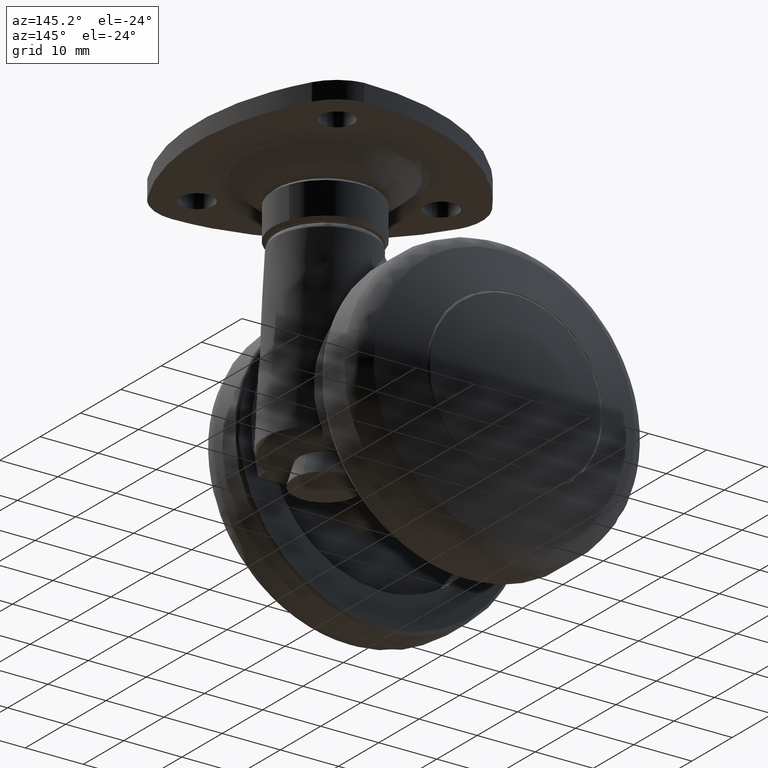
[diagram: clean part render]
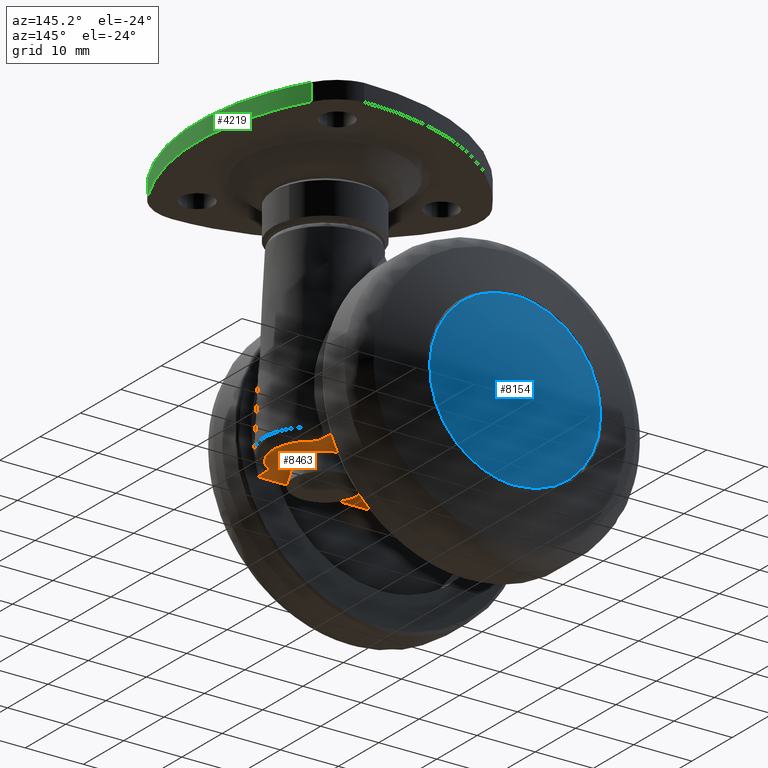
[diagram: same view with three faces highlighted in distinct colors, each labeled with its STEP entity id]
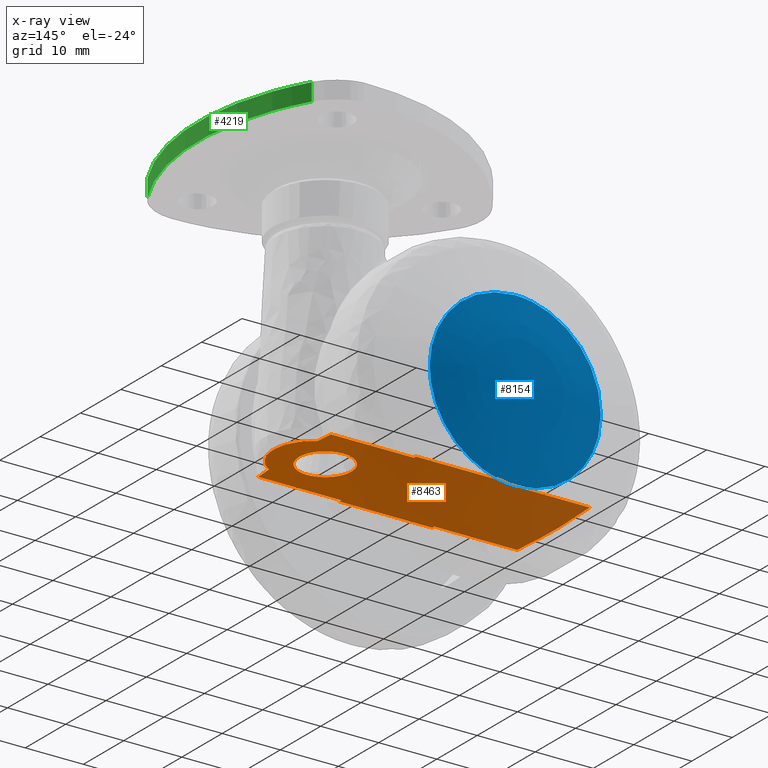
[diagram: x-ray of the same camera — body ghosted, the three highlighted faces saturated]
A machine part, auxiliary view with three faces highlighted in distinct colors.
The next image is the same camera in x-ray (body ghosted, the three faces saturated) — at least one of them is partly hidden behind the body in this view.
Their STEP definitions:

[orange] entity #8463 — the highlighted face is a freeform B-spline surface patch.
#5933=CARTESIAN_POINT('',(16.441430532839370,-4.465198780604559,-7.499999999999998));
#5934=VERTEX_POINT('',#5933);
#5940=CARTESIAN_POINT('',(12.500000000000000,-2.755364E-015,-7.500000000000000));
#5941=VERTEX_POINT('',#5940);
#5942=CARTESIAN_POINT('',(16.441430532839366,-4.465198780604559,-7.499999999999998));
#5943=CARTESIAN_POINT('',(12.499999999999998,-3.972149565837255,-7.499999999999999));
#5944=CARTESIAN_POINT('',(12.500000000000000,-2.755364E-015,-7.500000000000000));
#5952=(BOUNDED_CURVE()B_SPLINE_CURVE(2,(#5942,#5943,#5944),.UNSPECIFIED.,.F.,.U.)B_SPLINE_CURVE_WITH_KNOTS((3,3),(0.271473681878583,0.500000000000000),.UNSPECIFIED.)CURVE()GEOMETRIC_REPRESENTATION_ITEM()RATIONAL_B_SPLINE_CURVE((0.954005909785564,0.732264764407324,1.0))REPRESENTATION_ITEM(''));
#5953=EDGE_CURVE('',#5934,#5941,#5952,.T.);
#5955=CARTESIAN_POINT('',(17.039269409921101,4.499828653787210,-7.500000000000000));
#5956=VERTEX_POINT('',#5955);
#5957=CARTESIAN_POINT('',(12.500000000000000,-2.755364E-015,-7.500000000000000));
#5958=CARTESIAN_POINT('',(12.499999999999998,4.499999999999998,-7.500000000000000));
#5959=CARTESIAN_POINT('',(17.0,4.499999999999997,-7.500000000000000));
#5960=CARTESIAN_POINT('',(17.019635078871588,4.499999999999997,-7.500000000000000));
#5961=CARTESIAN_POINT('',(17.039269409921097,4.499828653787210,-7.500000000000000));
#5969=(BOUNDED_CURVE()B_SPLINE_CURVE(2,(#5957,#5958,#5959,#5960,#5961),.UNSPECIFIED.,.F.,.U.)B_SPLINE_CURVE_WITH_KNOTS((3,2,3),(0.500000000000000,0.750000000000000,0.751539894348956),.UNSPECIFIED.)CURVE()GEOMETRIC_REPRESENTATION_ITEM()RATIONAL_B_SPLINE_CURVE((1.0,0.707106781186547,1.0,0.998195901550007,0.996414028068079))REPRESENTATION_ITEM(''));
#5970=EDGE_CURVE('',#5941,#5956,#5969,.T.);
#6050=CARTESIAN_POINT('',(21.500000000000000,-2.755364E-015,-7.500000000000000));
#6051=VERTEX_POINT('',#6050);
#6052=CARTESIAN_POINT('',(17.039269409921097,4.499828653787210,-7.500000000000000));
#6053=CARTESIAN_POINT('',(21.499999999999996,4.460900447323635,-7.500000000000001));
#6054=CARTESIAN_POINT('',(21.500000000000000,-2.755364E-015,-7.500000000000000));
#6062=(BOUNDED_CURVE()B_SPLINE_CURVE(2,(#6052,#6053,#6054),.UNSPECIFIED.,.F.,.U.)B_SPLINE_CURVE_WITH_KNOTS((3,3),(0.751539894348955,1.0),.UNSPECIFIED.)CURVE()GEOMETRIC_REPRESENTATION_ITEM()RATIONAL_B_SPLINE_CURVE((0.996414028068080,0.708910879636540,1.0))REPRESENTATION_ITEM(''));
#6063=EDGE_CURVE('',#5956,#6051,#6062,.T.);
#6065=CARTESIAN_POINT('',(21.500000000000000,-2.755364E-015,-7.500000000000000));
#6066=CARTESIAN_POINT('',(21.500000000000000,-4.500000000000004,-7.500000000000000));
#6067=CARTESIAN_POINT('',(17.0,-4.500000000000003,-7.500000000000000));
#6068=CARTESIAN_POINT('',(16.719631135490040,-4.500000000000003,-7.500000000000001));
#6069=CARTESIAN_POINT('',(16.441430532839373,-4.465198780604559,-7.499999999999998));
#6077=(BOUNDED_CURVE()B_SPLINE_CURVE(2,(#6065,#6066,#6067,#6068,#6069),.UNSPECIFIED.,.F.,.U.)B_SPLINE_CURVE_WITH_KNOTS((3,2,3),(0.0,0.250000000000000,0.271473681878583),.UNSPECIFIED.)CURVE()GEOMETRIC_REPRESENTATION_ITEM()RATIONAL_B_SPLINE_CURVE((1.0,0.707106781186547,1.0,0.974842016779223,0.954005909785564))REPRESENTATION_ITEM(''));
#6078=EDGE_CURVE('',#6051,#5934,#6077,.T.);
#6772=CARTESIAN_POINT('',(22.508473345036649,6.008970139218520,-7.500000000000000));
#6773=VERTEX_POINT('',#6772);
#7784=CARTESIAN_POINT('',(22.508473345036649,-6.008970139218490,-7.500000000000000));
#7785=VERTEX_POINT('',#7784);
#7891=CARTESIAN_POINT('',(22.508473345036649,6.008970139218517,-7.500000000000000));
#7892=CARTESIAN_POINT('',(25.923797487043977,3.971716724947550,-7.500000000000000));
#7893=CARTESIAN_POINT('',(25.923797487043981,8.572244E-016,-7.500000000000000));
#7894=CARTESIAN_POINT('',(25.923797487043977,-3.971716724947548,-7.500000000000000));
#7895=CARTESIAN_POINT('',(22.508473345036649,-6.008970139218516,-7.500000000000000));
#7903=(BOUNDED_CURVE()B_SPLINE_CURVE(2,(#7891,#7892,#7893,#7894,#7895),.UNSPECIFIED.,.F.,.U.)B_SPLINE_CURVE_WITH_KNOTS((3,2,3),(0.0,0.500000000000000,1.0),.UNSPECIFIED.)CURVE()GEOMETRIC_REPRESENTATION_ITEM()RATIONAL_B_SPLINE_CURVE((1.0,0.869752913530884,1.0,0.869752913530884,1.0))REPRESENTATION_ITEM(''));
#7904=EDGE_CURVE('',#6773,#7785,#7903,.T.);
#7999=CARTESIAN_POINT('',(8.000000000000199,-9.0,-7.500000000000000));
#8000=VERTEX_POINT('',#7999);
#8013=CARTESIAN_POINT('',(8.000000000000231,-9.499999999999890,-7.500000000000000));
#8014=VERTEX_POINT('',#8013);
#8020=CARTESIAN_POINT('',(8.000000000000199,-9.0,-7.500000000000000));
#8021=CARTESIAN_POINT('',(8.000000000000231,-9.499999999999890,-7.500000000000000));
#8022=QUASI_UNIFORM_CURVE('',1,(#8020,#8021),.UNSPECIFIED.,.F.,.U.);
#8023=EDGE_CURVE('',#8000,#8014,#8022,.T.);
#8042=CARTESIAN_POINT('',(-7.999999999999789,-9.0,-7.500000000000000));
#8043=VERTEX_POINT('',#8042);
#8049=CARTESIAN_POINT('',(-7.999999999999789,-9.499999999999890,-7.500000000000000));
#8050=VERTEX_POINT('',#8049);
#8051=CARTESIAN_POINT('',(-7.999999999999789,-9.0,-7.500000000000000));
#8052=CARTESIAN_POINT('',(-7.999999999999789,-9.499999999999890,-7.500000000000000));
#8053=QUASI_UNIFORM_CURVE('',1,(#8051,#8052),.UNSPECIFIED.,.F.,.U.);
#8054=EDGE_CURVE('',#8043,#8050,#8053,.T.);
#8092=CARTESIAN_POINT('',(-7.999999999999789,-9.499999999999890,-7.500000000000000));
#8093=CARTESIAN_POINT('',(8.000000000000231,-9.499999999999890,-7.500000000000000));
#8094=QUASI_UNIFORM_CURVE('',1,(#8092,#8093),.UNSPECIFIED.,.F.,.U.);
#8095=EDGE_CURVE('',#8050,#8014,#8094,.T.);
#8196=CARTESIAN_POINT('',(8.000000000000231,9.500000000000108,-7.500000000000000));
#8197=VERTEX_POINT('',#8196);
#8203=CARTESIAN_POINT('',(-7.999999999999789,9.500000000000108,-7.500000000000000));
#8204=VERTEX_POINT('',#8203);
#8205=CARTESIAN_POINT('',(-7.999999999999789,9.500000000000108,-7.500000000000000));
#8206=CARTESIAN_POINT('',(8.000000000000231,9.500000000000108,-7.500000000000000));
#8207=QUASI_UNIFORM_CURVE('',1,(#8205,#8206),.UNSPECIFIED.,.F.,.U.);
#8208=EDGE_CURVE('',#8204,#8197,#8207,.T.);
#8230=CARTESIAN_POINT('',(-7.999999999999789,8.999999999999901,-7.500000000000000));
#8231=VERTEX_POINT('',#8230);
#8232=CARTESIAN_POINT('',(-7.999999999999789,9.500000000000108,-7.500000000000000));
#8233=CARTESIAN_POINT('',(-7.999999999999789,8.999999999999901,-7.500000000000000));
#8234=QUASI_UNIFORM_CURVE('',1,(#8232,#8233),.UNSPECIFIED.,.F.,.U.);
#8235=EDGE_CURVE('',#8204,#8231,#8234,.T.);
#8252=CARTESIAN_POINT('',(8.000000000000231,8.999999999999901,-7.500000000000000));
#8253=VERTEX_POINT('',#8252);
#8259=CARTESIAN_POINT('',(8.000000000000231,9.500000000000108,-7.500000000000000));
#8260=CARTESIAN_POINT('',(8.000000000000231,8.999999999999901,-7.500000000000000));
#8261=QUASI_UNIFORM_CURVE('',1,(#8259,#8260),.UNSPECIFIED.,.F.,.U.);
#8262=EDGE_CURVE('',#8197,#8253,#8261,.T.);
#8294=CARTESIAN_POINT('',(22.271056962330849,-9.0,-7.500000000000000));
#8295=VERTEX_POINT('',#8294);
#8309=CARTESIAN_POINT('',(22.271056962330849,-9.0,-7.500000000000000));
#8310=CARTESIAN_POINT('',(22.365907716105198,-8.005315201643915,-7.500000000000000));
#8311=CARTESIAN_POINT('',(22.445051108199991,-7.008305928470444,-7.500000000000000));
#8312=CARTESIAN_POINT('',(22.508473345036649,-6.008970139218490,-7.500000000000000));
#8313=B_SPLINE_CURVE_WITH_KNOTS('',3,(#8309,#8310,#8311,#8312),.UNSPECIFIED.,.F.,.U.,(4,4),(0.987302015286309,1.0),.UNSPECIFIED.);
#8314=EDGE_CURVE('',#8295,#7785,#8313,.T.);
#8327=CARTESIAN_POINT('',(22.271056962330849,-9.0,-7.500000000000000));
#8328=CARTESIAN_POINT('',(8.000000000000199,-9.0,-7.500000000000000));
#8329=QUASI_UNIFORM_CURVE('',1,(#8327,#8328),.UNSPECIFIED.,.F.,.U.);
#8330=EDGE_CURVE('',#8295,#8000,#8329,.T.);
#8334=CARTESIAN_POINT('',(-22.271056962330899,-9.0,-7.500000000000000));
#8335=VERTEX_POINT('',#8334);
#8351=CARTESIAN_POINT('',(-7.999999999999789,-9.0,-7.500000000000000));
#8352=CARTESIAN_POINT('',(-22.271056962330899,-9.0,-7.500000000000000));
#8353=QUASI_UNIFORM_CURVE('',1,(#8351,#8352),.UNSPECIFIED.,.F.,.U.);
#8354=EDGE_CURVE('',#8043,#8335,#8353,.T.);
#8365=CARTESIAN_POINT('',(-22.271056962330899,9.0,-7.500000000000000));
#8366=VERTEX_POINT('',#8365);
#8367=CARTESIAN_POINT('',(-22.271056962330899,9.0,-7.500000000000000));
#8368=CARTESIAN_POINT('',(-7.999999999999789,8.999999999999901,-7.500000000000000));
#8369=QUASI_UNIFORM_CURVE('',1,(#8367,#8368),.UNSPECIFIED.,.F.,.U.);
#8370=EDGE_CURVE('',#8366,#8231,#8369,.T.);
#8388=CARTESIAN_POINT('',(22.271056962330899,9.0,-7.500000000000000));
#8389=VERTEX_POINT('',#8388);
#8403=CARTESIAN_POINT('',(8.000000000000231,8.999999999999901,-7.500000000000000));
#8404=CARTESIAN_POINT('',(22.271056962330899,9.0,-7.500000000000000));
#8405=QUASI_UNIFORM_CURVE('',1,(#8403,#8404),.UNSPECIFIED.,.F.,.U.);
#8406=EDGE_CURVE('',#8253,#8389,#8405,.T.);
#8413=CARTESIAN_POINT('',(-25.127545805967731,-10.449049963174200,-7.500000000000000));
#8414=CARTESIAN_POINT('',(28.352499684814880,-10.449049963174200,-7.500000000000000));
#8415=CARTESIAN_POINT('',(-25.127545805967731,10.449050472794140,-7.500000000000000));
#8416=CARTESIAN_POINT('',(28.352499684814880,10.449050472794140,-7.500000000000000));
#8417=B_SPLINE_SURFACE_WITH_KNOTS('',1,1,((#8413,#8415),(#8414,#8416)),.UNSPECIFIED.,.F.,.F.,.U.,(2,2),(2,2),(0.0,53.480045490782601),(0.0,20.898100435968342),.UNSPECIFIED.);
#8418=CARTESIAN_POINT('',(22.508473345036649,6.008970139218520,-7.500000000000000));
#8419=CARTESIAN_POINT('',(22.445029146177308,7.008649669417468,-7.500000000000000));
#8420=CARTESIAN_POINT('',(22.365875098585281,8.005657028487292,-7.500000000000001));
#8421=CARTESIAN_POINT('',(22.271056962330899,9.0,-7.500000000000000));
#8422=B_SPLINE_CURVE_WITH_KNOTS('',3,(#8418,#8419,#8420,#8421),.UNSPECIFIED.,.F.,.U.,(4,4),(0.0,0.012657862134114),.UNSPECIFIED.);
#8423=EDGE_CURVE('',#6773,#8389,#8422,.T.);
#8424=ORIENTED_EDGE('',*,*,#8423,.F.);
#8425=ORIENTED_EDGE('',*,*,#7904,.T.);
#8426=ORIENTED_EDGE('',*,*,#8314,.F.);
#8427=ORIENTED_EDGE('',*,*,#8330,.T.);
#8428=ORIENTED_EDGE('',*,*,#8023,.T.);
#8429=ORIENTED_EDGE('',*,*,#8095,.F.);
#8430=ORIENTED_EDGE('',*,*,#8054,.F.);
#8431=ORIENTED_EDGE('',*,*,#8354,.T.);
#8432=CARTESIAN_POINT('',(-22.271056962330899,9.0,-7.500000000000000));
#8433=CARTESIAN_POINT('',(-22.326246436391131,8.421113523567511,-7.500000000000000));
#8434=CARTESIAN_POINT('',(-22.376107840399680,7.841567522138998,-7.500000000000000));
#8435=CARTESIAN_POINT('',(-22.607889066678592,4.822462405177966,-7.500000000000000));
#8436=CARTESIAN_POINT('',(-22.701146241926342,2.371928352875127,-7.499999999999999));
#8437=CARTESIAN_POINT('',(-22.697628886571451,-1.321623607242038,-7.499999999999997));
#8438=CARTESIAN_POINT('',(-22.672520384214948,-2.555770472345564,-7.500000000000002));
#8439=CARTESIAN_POINT('',(-22.610680921234270,-4.102223723649644,-7.499999999999999));
#8440=CARTESIAN_POINT('',(-22.596786909220739,-4.411712442788734,-7.500000000000001));
#8441=CARTESIAN_POINT('',(-22.566012359647061,-5.029699530149097,-7.499999999999998));
#8442=CARTESIAN_POINT('',(-22.515351681856671,-5.955708155191383,-7.500000000000001));
#8443=CARTESIAN_POINT('',(-22.451252646681070,-6.878813337347844,-7.500000000000000));
#8444=CARTESIAN_POINT('',(-22.362715623734921,-7.996148128712547,-7.500000000000000));
#8445=CARTESIAN_POINT('',(-22.318867952421201,-8.498502214515414,-7.500000000000000));
#8446=CARTESIAN_POINT('',(-22.271056962330899,-9.0,-7.500000000000000));
#8447=B_SPLINE_CURVE_WITH_KNOTS('',3,(#8432,#8433,#8434,#8435,#8436,#8437,#8438,#8439,#8440,#8441,#8442,#8443,#8444,#8445,#8446),.UNSPECIFIED.,.F.,.U.,(4,2,2,2,2,1,2,4),(0.461315755579124,0.468749999999992,0.499999999999991,0.515624999999991,0.519531249999991,0.523437499999991,0.531249999999991,0.537651572681553),.UNSPECIFIED.);
#8448=EDGE_CURVE('',#8366,#8335,#8447,.T.);
#8449=ORIENTED_EDGE('',*,*,#8448,.F.);
#8450=ORIENTED_EDGE('',*,*,#8370,.T.);
#8451=ORIENTED_EDGE('',*,*,#8235,.F.);
#8452=ORIENTED_EDGE('',*,*,#8208,.T.);
#8453=ORIENTED_EDGE('',*,*,#8262,.T.);
#8454=ORIENTED_EDGE('',*,*,#8406,.T.);
#8455=EDGE_LOOP('',(#8424,#8425,#8426,#8427,#8428,#8429,#8430,#8431,#8449,#8450,#8451,#8452,#8453,#8454));
#8456=FACE_OUTER_BOUND('',#8455,.T.);
#8457=ORIENTED_EDGE('',*,*,#5970,.F.);
#8458=ORIENTED_EDGE('',*,*,#5953,.F.);
#8459=ORIENTED_EDGE('',*,*,#6078,.F.);
#8460=ORIENTED_EDGE('',*,*,#6063,.F.);
#8461=EDGE_LOOP('',(#8457,#8458,#8459,#8460));
#8462=FACE_BOUND('',#8461,.T.);
#8463=ADVANCED_FACE('',(#8456,#8462),#8417,.F.);

[blue] entity #8154 — the highlighted face is a freeform B-spline surface patch.
#6272=CARTESIAN_POINT('',(5.284961764844386,22.599255052118369,-13.745990887027739));
#6273=VERTEX_POINT('',#6272);
#6287=CARTESIAN_POINT('',(0.0,22.599255056600999,14.726951002130320));
#6288=VERTEX_POINT('',#6287);
#6289=CARTESIAN_POINT('',(0.0,22.599255056600999,14.726951002130320));
#6290=CARTESIAN_POINT('',(14.726951002130319,22.599255056600999,14.726951002130319));
#6291=CARTESIAN_POINT('',(14.726951002130320,22.599255056600999,-2.621149E-016));
#6292=CARTESIAN_POINT('',(14.726951002130322,22.599255056600999,-10.115801345452606));
#6293=CARTESIAN_POINT('',(5.284961764844386,22.599255052118366,-13.745990887027736));
#6301=(BOUNDED_CURVE()B_SPLINE_CURVE(2,(#6289,#6290,#6291,#6292,#6293),.UNSPECIFIED.,.F.,.U.)B_SPLINE_CURVE_WITH_KNOTS((3,2,3),(0.500000000000000,0.750000000000000,0.939060941086260),.UNSPECIFIED.)CURVE()GEOMETRIC_REPRESENTATION_ITEM()RATIONAL_B_SPLINE_CURVE((1.0,0.707106781186548,1.0,0.778501329653379,0.892016635827458))REPRESENTATION_ITEM(''));
#6302=EDGE_CURVE('',#6288,#6273,#6301,.T.);
#6304=CARTESIAN_POINT('',(-14.264276769928721,22.599255052655622,-3.662443786968857));
#6305=VERTEX_POINT('',#6304);
#6306=CARTESIAN_POINT('',(-14.264276769928722,22.599255052655625,-3.662443786968857));
#6307=CARTESIAN_POINT('',(-14.726951002130322,22.599255056601002,-1.860446566745563));
#6308=CARTESIAN_POINT('',(-14.726951002130320,22.599255056600999,-2.621149E-016));
#6309=CARTESIAN_POINT('',(-14.726951002130319,22.599255056600999,14.726951002130319));
#6310=CARTESIAN_POINT('',(0.0,22.599255056600999,14.726951002130320));
#6318=(BOUNDED_CURVE()B_SPLINE_CURVE(2,(#6306,#6307,#6308,#6309,#6310),.UNSPECIFIED.,.F.,.U.)B_SPLINE_CURVE_WITH_KNOTS((3,2,3),(0.207556761751615,0.250000000000000,0.500000000000000),.UNSPECIFIED.)CURVE()GEOMETRIC_REPRESENTATION_ITEM()RATIONAL_B_SPLINE_CURVE((0.917433344546013,0.950274653330257,1.0,0.707106781186548,1.0))REPRESENTATION_ITEM(''));
#6319=EDGE_CURVE('',#6305,#6288,#6318,.T.);
#6364=CARTESIAN_POINT('',(0.0,22.599255056600999,-14.726951002130320));
#6365=VERTEX_POINT('',#6364);
#6366=CARTESIAN_POINT('',(0.0,22.599255056600999,-14.726951002130320));
#6367=CARTESIAN_POINT('',(-11.423394152205454,22.599255056601002,-14.726951002130324));
#6368=CARTESIAN_POINT('',(-14.264276769928726,22.599255052655622,-3.662443786968857));
#6376=(BOUNDED_CURVE()B_SPLINE_CURVE(2,(#6366,#6367,#6368),.UNSPECIFIED.,.F.,.U.)B_SPLINE_CURVE_WITH_KNOTS((3,3),(0.0,0.207556761751615),.UNSPECIFIED.)CURVE()GEOMETRIC_REPRESENTATION_ITEM()RATIONAL_B_SPLINE_CURVE((1.0,0.756832127856291,0.917433344546013))REPRESENTATION_ITEM(''));
#6377=EDGE_CURVE('',#6365,#6305,#6376,.T.);
#6379=CARTESIAN_POINT('',(5.284961764844386,22.599255052118362,-13.745990887027743));
#6380=CARTESIAN_POINT('',(2.733520590120573,22.599255056600999,-14.726951002130315));
#6381=CARTESIAN_POINT('',(0.0,22.599255056600999,-14.726951002130320));
#6389=(BOUNDED_CURVE()B_SPLINE_CURVE(2,(#6379,#6380,#6381),.UNSPECIFIED.,.F.,.U.)B_SPLINE_CURVE_WITH_KNOTS((3,3),(0.939060941086259,1.0),.UNSPECIFIED.)CURVE()GEOMETRIC_REPRESENTATION_ITEM()RATIONAL_B_SPLINE_CURVE((0.892016635827456,0.928605451533167,1.0))REPRESENTATION_ITEM(''));
#6390=EDGE_CURVE('',#6273,#6365,#6389,.T.);
#8124=CARTESIAN_POINT('',(-15.829464872289906,20.005716900766590,15.829995963595710));
#8125=CARTESIAN_POINT('',(-8.071072541858550,22.208393669579195,16.142686665696019));
#8126=CARTESIAN_POINT('',(8.071322237210502,22.208393669579195,16.142686665696019));
#8127=CARTESIAN_POINT('',(15.829935616661681,20.005583250090847,15.829976990624163));
#8128=CARTESIAN_POINT('',(-16.142166479896204,22.208544395032785,8.071354031296499));
#8129=CARTESIAN_POINT('',(-8.233724630001763,24.499999999999989,8.234000878099884));
#8130=CARTESIAN_POINT('',(8.233979357333068,24.499999999999989,8.234000878099884));
#8131=CARTESIAN_POINT('',(16.142646141339227,22.208405411826725,8.071344166309293));
#8132=CARTESIAN_POINT('',(-16.142166479896204,22.208544395032785,-8.071353917033145));
#8133=CARTESIAN_POINT('',(-8.233724630001763,24.499999999999989,-8.234000761533995));
#8134=CARTESIAN_POINT('',(8.233979357333068,24.499999999999989,-8.234000761533995));
#8135=CARTESIAN_POINT('',(16.142646141339227,22.208405411826725,-8.071344052046078));
#8136=CARTESIAN_POINT('',(-15.829464880972008,20.005716961927707,-15.829995748178352));
#8137=CARTESIAN_POINT('',(-8.071072546372795,22.208393733180419,-16.142686446198404));
#8138=CARTESIAN_POINT('',(8.071322241724886,22.208393733180419,-16.142686446198404));
#8139=CARTESIAN_POINT('',(15.829935625344030,20.005583311251819,-15.829976775207053));
#8147=(BOUNDED_SURFACE()B_SPLINE_SURFACE(2,2,((#8124,#8128,#8132,#8136),(#8125,#8129,#8133,#8137),(#8126,#8130,#8134,#8138),(#8127,#8131,#8135,#8139)),.UNSPECIFIED.,.F.,.F.,.U.)B_SPLINE_SURFACE_WITH_KNOTS((3,1,3),(3,1,3),(13.223269538497920,29.153157823789790,45.083538933181757),(13.222735077905661,29.153157823789780,45.083580344152452),.UNSPECIFIED.)GEOMETRIC_REPRESENTATION_ITEM()RATIONAL_B_SPLINE_SURFACE(((1.040303597933397,1.020151122868942,1.020151122868942,1.040303597362814),(1.020152475064455,1.0,1.0,1.020152474493872),(1.020152475064455,1.0,1.0,1.020152474493872),(1.040304844786161,1.020152369721705,1.020152369721705,1.040304844215578)))REPRESENTATION_ITEM('')SURFACE());
#8148=ORIENTED_EDGE('',*,*,#6377,.T.);
#8149=ORIENTED_EDGE('',*,*,#6319,.T.);
#8150=ORIENTED_EDGE('',*,*,#6302,.T.);
#8151=ORIENTED_EDGE('',*,*,#6390,.T.);
#8152=EDGE_LOOP('',(#8148,#8149,#8150,#8151));
#8153=FACE_OUTER_BOUND('',#8152,.T.);
#8154=ADVANCED_FACE('',(#8153),#8147,.T.);

[green] entity #4219 — the highlighted face is a freeform B-spline surface patch.
#4128=CARTESIAN_POINT('',(33.478008623559802,20.376842513428102,37.0));
#4129=VERTEX_POINT('',#4128);
#4144=CARTESIAN_POINT('',(33.478008623559802,20.376842513428102,40.0));
#4145=VERTEX_POINT('',#4144);
#4159=CARTESIAN_POINT('',(33.478008623559802,20.376842513428102,40.0));
#4160=CARTESIAN_POINT('',(33.478008623559802,20.376842513428102,37.0));
#4161=QUASI_UNIFORM_CURVE('',1,(#4159,#4160),.UNSPECIFIED.,.F.,.U.);
#4162=EDGE_CURVE('',#4145,#4129,#4161,.T.);
#4167=CARTESIAN_POINT('',(32.921672282168920,-21.324279811959439,40.075000000000010));
#4168=CARTESIAN_POINT('',(32.921672282168920,-21.324279811959439,36.923124999999992));
#4169=CARTESIAN_POINT('',(45.992225801335763,0.491041128637245,40.075000000000010));
#4170=CARTESIAN_POINT('',(45.992225801335763,0.491041128637245,36.923124999999985));
#4171=CARTESIAN_POINT('',(32.488539640040052,22.040938044768229,40.075000000000010));
#4172=CARTESIAN_POINT('',(32.488539640040052,22.040938044768229,36.923124999999992));
#4180=(BOUNDED_SURFACE()B_SPLINE_SURFACE(1,2,((#4167,#4169,#4171),(#4168,#4170,#4172)),.UNSPECIFIED.,.F.,.F.,.U.)B_SPLINE_SURFACE_WITH_KNOTS((2,2),(3,3),(0.0,3.151875000000020),(0.0,46.816841938157403),.UNSPECIFIED.)GEOMETRIC_REPRESENTATION_ITEM()RATIONAL_B_SPLINE_SURFACE(((1.0,0.852640164354092,1.0),(1.0,0.852640164354092,1.0)))REPRESENTATION_ITEM('')SURFACE());
#4181=CARTESIAN_POINT('',(33.467806759583453,-20.385088002863849,37.0));
#4182=VERTEX_POINT('',#4181);
#4183=CARTESIAN_POINT('',(33.467806759583418,-20.385088002863849,37.0));
#4184=CARTESIAN_POINT('',(44.963275830308945,-0.006998545037082,36.999999999999993));
#4185=CARTESIAN_POINT('',(33.478008623559781,20.376842513428070,37.0));
#4193=(BOUNDED_CURVE()B_SPLINE_CURVE(2,(#4183,#4184,#4185),.UNSPECIFIED.,.F.,.U.)CURVE()GEOMETRIC_REPRESENTATION_ITEM()QUASI_UNIFORM_CURVE()RATIONAL_B_SPLINE_CURVE((1.0,0.871098911416930,1.0))REPRESENTATION_ITEM(''));
#4194=EDGE_CURVE('',#4182,#4129,#4193,.T.);
#4195=ORIENTED_EDGE('',*,*,#4194,.T.);
#4196=ORIENTED_EDGE('',*,*,#4162,.F.);
#4197=CARTESIAN_POINT('',(33.467806759583453,-20.385088002863849,40.0));
#4198=VERTEX_POINT('',#4197);
#4199=CARTESIAN_POINT('',(33.467806759583418,-20.385088002863849,40.0));
#4200=CARTESIAN_POINT('',(44.963275830308945,-0.006998545037082,40.0));
#4201=CARTESIAN_POINT('',(33.478008623559781,20.376842513428070,40.0));
#4209=(BOUNDED_CURVE()B_SPLINE_CURVE(2,(#4199,#4200,#4201),.UNSPECIFIED.,.F.,.U.)CURVE()GEOMETRIC_REPRESENTATION_ITEM()QUASI_UNIFORM_CURVE()RATIONAL_B_SPLINE_CURVE((1.0,0.871098911416930,1.0))REPRESENTATION_ITEM(''));
#4210=EDGE_CURVE('',#4198,#4145,#4209,.T.);
#4211=ORIENTED_EDGE('',*,*,#4210,.F.);
#4212=CARTESIAN_POINT('',(33.467806759583453,-20.385088002863849,40.0));
#4213=CARTESIAN_POINT('',(33.467806759583453,-20.385088002863849,37.0));
#4214=QUASI_UNIFORM_CURVE('',1,(#4212,#4213),.UNSPECIFIED.,.F.,.U.);
#4215=EDGE_CURVE('',#4198,#4182,#4214,.T.);
#4216=ORIENTED_EDGE('',*,*,#4215,.T.);
#4217=EDGE_LOOP('',(#4195,#4196,#4211,#4216));
#4218=FACE_OUTER_BOUND('',#4217,.T.);
#4219=ADVANCED_FACE('',(#4218),#4180,.T.);